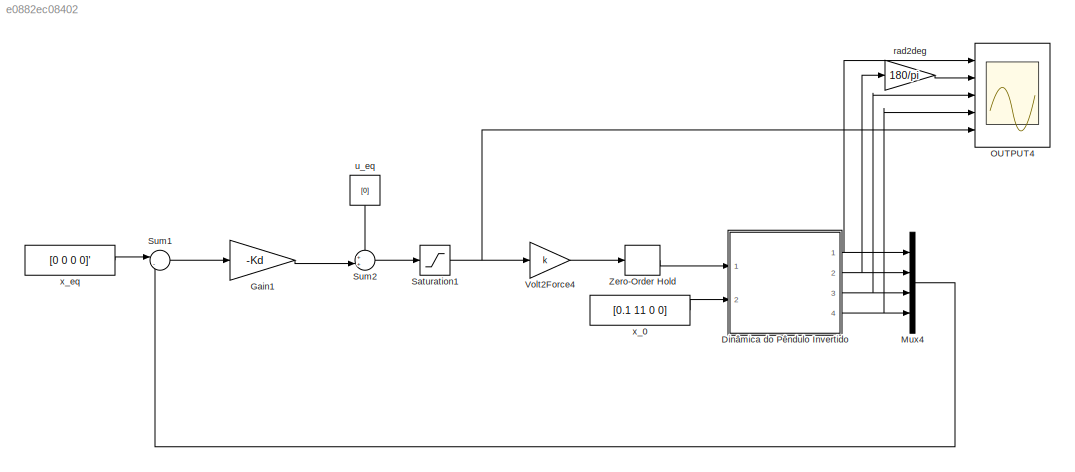
MODEL slx_e0882ec08402
KIND model
CONFIG AbsTol = auto
CONFIG EnableMultiTasking = off
CONFIG FixedStep = auto
CONFIG MaxStep = auto
CONFIG MinStep = auto
CONFIG RelTol = 1e-3
CONFIG SampleTimeConstraint = Unconstrained
CONFIG SolverName = VariableStepAuto
CONFIG StartTime = 0.0
CONFIG StopTime = 10.0
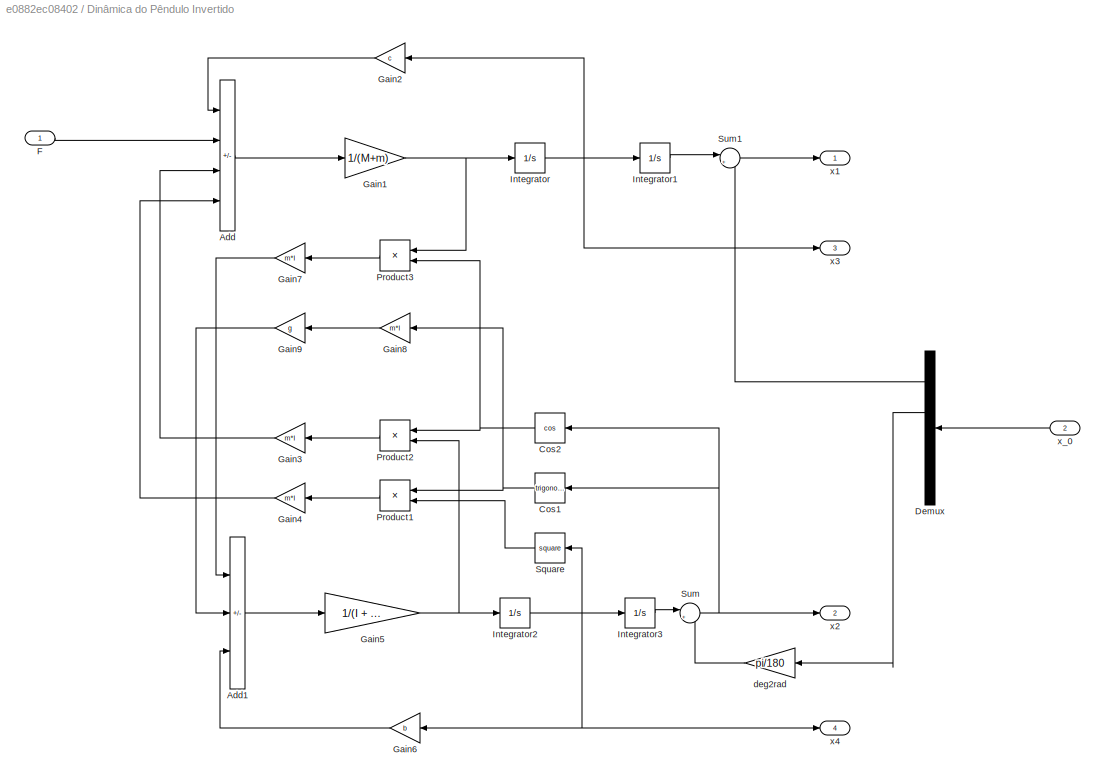
BLOCK [SubSystem] Dinâmica do Pêndulo Invertido
  Ports = [2, 4]
  RequestExecContextInheritance = off
BLOCK [Sum] Dinâmica do Pêndulo Invertido/Add
  IconShape = rectangular
  Inputs = -+-+
  Ports = [4, 1]
BLOCK [Sum] Dinâmica do Pêndulo Invertido/Add1
  IconShape = rectangular
  Inputs = -+-
  Ports = [3, 1]
BLOCK [Trigonometry] Dinâmica do Pêndulo Invertido/Cos1
  NameLocation = top
  Ports = [1, 1]
BLOCK [Trigonometry] Dinâmica do Pêndulo Invertido/Cos2
  NameLocation = top
  Operator = cos
  Ports = [1, 1]
BLOCK [Demux] Dinâmica do Pêndulo Invertido/Demux
  NameLocation = top
  Ports = [1, 4]
BLOCK [Inport] Dinâmica do Pêndulo Invertido/F
BLOCK [Gain] Dinâmica do Pêndulo Invertido/Gain1
  Gain = 1/(M+m)
BLOCK [Gain] Dinâmica do Pêndulo Invertido/Gain2
  Gain = c
  NameLocation = top
BLOCK [Gain] Dinâmica do Pêndulo Invertido/Gain3
  Gain = m*l
  NameLocation = top
BLOCK [Gain] Dinâmica do Pêndulo Invertido/Gain4
  Gain = m*l
  NameLocation = top
BLOCK [Gain] Dinâmica do Pêndulo Invertido/Gain5
  Gain = 1/(I + m*l^2)
BLOCK [Gain] Dinâmica do Pêndulo Invertido/Gain6
  Gain = b
  NameLocation = top
BLOCK [Gain] Dinâmica do Pêndulo Invertido/Gain7
  Gain = m*l
  NameLocation = top
BLOCK [Gain] Dinâmica do Pêndulo Invertido/Gain8
  Gain = m*l
  NameLocation = top
BLOCK [Gain] Dinâmica do Pêndulo Invertido/Gain9
  Gain = g
  NameLocation = top
BLOCK [Integrator] Dinâmica do Pêndulo Invertido/Integrator
  Ports = [1, 1]
BLOCK [Integrator] Dinâmica do Pêndulo Invertido/Integrator1
  Ports = [1, 1]
BLOCK [Integrator] Dinâmica do Pêndulo Invertido/Integrator2
  Ports = [1, 1]
BLOCK [Integrator] Dinâmica do Pêndulo Invertido/Integrator3
  Ports = [1, 1]
BLOCK [Product] Dinâmica do Pêndulo Invertido/Product1
  NameLocation = top
  Ports = [2, 1]
BLOCK [Product] Dinâmica do Pêndulo Invertido/Product2
  NameLocation = top
  Ports = [2, 1]
BLOCK [Product] Dinâmica do Pêndulo Invertido/Product3
  NameLocation = top
  Ports = [2, 1]
BLOCK [Math] Dinâmica do Pêndulo Invertido/Square
  NameLocation = top
  Operator = square
  Ports = [1, 1]
BLOCK [Sum] Dinâmica do Pêndulo Invertido/Sum
  Inputs = |++
  Ports = [2, 1]
BLOCK [Sum] Dinâmica do Pêndulo Invertido/Sum1
  Inputs = |++
  Ports = [2, 1]
BLOCK [Gain] Dinâmica do Pêndulo Invertido/deg2rad
  Gain = pi/180
BLOCK [Outport] Dinâmica do Pêndulo Invertido/x1
BLOCK [Outport] Dinâmica do Pêndulo Invertido/x2
  Port = 2
BLOCK [Outport] Dinâmica do Pêndulo Invertido/x3
  Port = 3
BLOCK [Outport] Dinâmica do Pêndulo Invertido/x4
  Port = 4
BLOCK [Inport] Dinâmica do Pêndulo Invertido/x_0
  NameLocation = top
  Port = 2
BLOCK [Gain] Gain1
  Gain = -Kd
  Multiplication = Matrix(K*u)
BLOCK [Mux] Mux4
  DisplayOption = bar
  Ports = [4, 1]
BLOCK [Scope] OUTPUT4
  Floating = off
  NumInputPorts = 5
  Ports = [5]
  ScopeSpecificationString = Simulink.scopes.TimeScopeBlockCfg('CurrentConfiguration', extmgr.ConfigurationSet(extmgr.Configuration('Core','General UI',true,'FigureColor',[1 1 1]),extmgr.Configuration('Core','Source UI',true),extmgr.Configuration('Sources','WiredSimulink',true,'DataLoggingVariableName','ScopeData2'),extmgr.Configuration('Visuals','Time Domain',true,'SerializedDisplays',{struct('MinYLimReal','-0.0254','MaxYLim...<+6913ch>
BLOCK [Saturate] Saturation1
  LowerLimit = -3
  UpperLimit = 3
BLOCK [Sum] Sum1
  Inputs = |-+
  Ports = [2, 1]
BLOCK [Sum] Sum2
  Inputs = ++|
  Ports = [2, 1]
BLOCK [Gain] Volt2Force4
  Gain = k
BLOCK [ZeroOrderHold] Zero-Order Hold
  SampleTime = Ts
BLOCK [Gain] rad2deg
  Gain = 180/pi
  NameLocation = top
BLOCK [Constant] u_eq
  NameLocation = left
  Value = [0]
BLOCK [Constant] x_0
  Value = [0.1 11 0 0]
BLOCK [Constant] x_eq
  Value = [0 0 0 0]'
LINE Dinâmica do Pêndulo Invertido/Add1:1 -> Dinâmica do Pêndulo Invertido/Gain5:1
LINE Dinâmica do Pêndulo Invertido/Add:1 -> Dinâmica do Pêndulo Invertido/Gain1:1
NET Dinâmica do Pêndulo Invertido/Cos1:1 -> Dinâmica do Pêndulo Invertido/Gain8:1, Dinâmica do Pêndulo Invertido/Product1:1
NET Dinâmica do Pêndulo Invertido/Cos2:1 -> Dinâmica do Pêndulo Invertido/Product2:1, Dinâmica do Pêndulo Invertido/Product3:2
LINE Dinâmica do Pêndulo Invertido/Demux:1 -> Dinâmica do Pêndulo Invertido/Sum1:2
LINE Dinâmica do Pêndulo Invertido/Demux:2 -> Dinâmica do Pêndulo Invertido/deg2rad:1
LINE Dinâmica do Pêndulo Invertido/F:1 -> Dinâmica do Pêndulo Invertido/Add:2
NET Dinâmica do Pêndulo Invertido/Gain1:1 -> Dinâmica do Pêndulo Invertido/Integrator:1, Dinâmica do Pêndulo Invertido/Product3:1
LINE Dinâmica do Pêndulo Invertido/Gain2:1 -> Dinâmica do Pêndulo Invertido/Add:1
LINE Dinâmica do Pêndulo Invertido/Gain3:1 -> Dinâmica do Pêndulo Invertido/Add:3
LINE Dinâmica do Pêndulo Invertido/Gain4:1 -> Dinâmica do Pêndulo Invertido/Add:4
NET Dinâmica do Pêndulo Invertido/Gain5:1 -> Dinâmica do Pêndulo Invertido/Integrator2:1, Dinâmica do Pêndulo Invertido/Product2:2
LINE Dinâmica do Pêndulo Invertido/Gain6:1 -> Dinâmica do Pêndulo Invertido/Add1:3
LINE Dinâmica do Pêndulo Invertido/Gain7:1 -> Dinâmica do Pêndulo Invertido/Add1:1
LINE Dinâmica do Pêndulo Invertido/Gain8:1 -> Dinâmica do Pêndulo Invertido/Gain9:1
LINE Dinâmica do Pêndulo Invertido/Gain9:1 -> Dinâmica do Pêndulo Invertido/Add1:2
LINE Dinâmica do Pêndulo Invertido/Integrator1:1 -> Dinâmica do Pêndulo Invertido/Sum1:1
NET Dinâmica do Pêndulo Invertido/Integrator2:1 -> Dinâmica do Pêndulo Invertido/Gain6:1, Dinâmica do Pêndulo Invertido/Integrator3:1, Dinâmica do Pêndulo Invertido/Square:1, Dinâmica do Pêndulo Invertido/x4:1
LINE Dinâmica do Pêndulo Invertido/Integrator3:1 -> Dinâmica do Pêndulo Invertido/Sum:1
NET Dinâmica do Pêndulo Invertido/Integrator:1 -> Dinâmica do Pêndulo Invertido/Gain2:1, Dinâmica do Pêndulo Invertido/Integrator1:1, Dinâmica do Pêndulo Invertido/x3:1
LINE Dinâmica do Pêndulo Invertido/Product1:1 -> Dinâmica do Pêndulo Invertido/Gain4:1
LINE Dinâmica do Pêndulo Invertido/Product2:1 -> Dinâmica do Pêndulo Invertido/Gain3:1
LINE Dinâmica do Pêndulo Invertido/Product3:1 -> Dinâmica do Pêndulo Invertido/Gain7:1
LINE Dinâmica do Pêndulo Invertido/Square:1 -> Dinâmica do Pêndulo Invertido/Product1:2
LINE Dinâmica do Pêndulo Invertido/Sum1:1 -> Dinâmica do Pêndulo Invertido/x1:1
NET Dinâmica do Pêndulo Invertido/Sum:1 -> Dinâmica do Pêndulo Invertido/Cos1:1, Dinâmica do Pêndulo Invertido/Cos2:1, Dinâmica do Pêndulo Invertido/x2:1
LINE Dinâmica do Pêndulo Invertido/deg2rad:1 -> Dinâmica do Pêndulo Invertido/Sum:2
LINE Dinâmica do Pêndulo Invertido/x_0:1 -> Dinâmica do Pêndulo Invertido/Demux:1
NET Dinâmica do Pêndulo Invertido:1 -> Mux4:1, OUTPUT4:1
NET Dinâmica do Pêndulo Invertido:2 -> Mux4:2, rad2deg:1
NET Dinâmica do Pêndulo Invertido:3 -> Mux4:3, OUTPUT4:3
NET Dinâmica do Pêndulo Invertido:4 -> Mux4:4, OUTPUT4:4
LINE Gain1:1 -> Sum2:2
LINE Mux4:1 -> Sum1:2
NET Saturation1:1 -> OUTPUT4:5, Volt2Force4:1
LINE Sum1:1 -> Gain1:1
LINE Sum2:1 -> Saturation1:1
LINE Volt2Force4:1 -> Zero-Order Hold:1
LINE Zero-Order Hold:1 -> Dinâmica do Pêndulo Invertido:1
LINE rad2deg:1 -> OUTPUT4:2
LINE u_eq:1 -> Sum2:1
LINE x_0:1 -> Dinâmica do Pêndulo Invertido:2
LINE x_eq:1 -> Sum1:1
note: NET lines group one-source signal fan-out (src -> all destinations, sorted); 1:1 wires keep LINE
